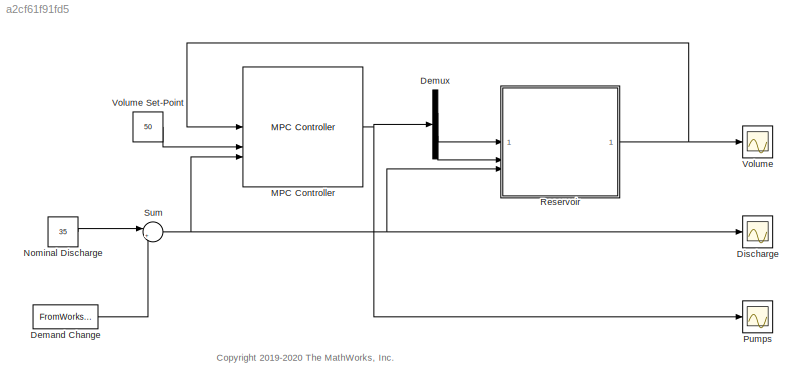
MODEL slx_a2cf61f91fd5
KIND model
CONFIG AbsTol = auto
CONFIG EnableMultiTasking = off
CONFIG FixedStep = auto
CONFIG MaxStep = auto
CONFIG MinStep = auto
CONFIG RelTol = 1e-3
CONFIG SampleTimeConstraint = Unconstrained
CONFIG SolverName = VariableStepAuto
CONFIG StartTime = 0.0
CONFIG StopTime = 100.0
BLOCK [FromWorkspace] Demand Change
  VariableName = [0 0; 5 0; 20 40; 60 40; 80 0; 100 0]
BLOCK [Demux] Demux
  Outputs = 2
BLOCK [Scope] Discharge
  Floating = off
  NumInputPorts = 1
  ScopeSpecificationString = Simulink.scopes.TimeScopeBlockCfg('CurrentConfiguration', extmgr.ConfigurationSet(extmgr.Configuration('Core','General UI',true),extmgr.Configuration('Core','Source UI',true),extmgr.Configuration('Sources','WiredSimulink',true,'DataLoggingVariableName','ScopeData2'),extmgr.Configuration('Visuals','Time Domain',true,'SerializedDisplays',{struct('MinYLimReal','30.00000','MaxYLimReal','80.00000','YLa...<+1396ch>
BLOCK [Reference] MPC Controller  REF=mpclib/MPC Controller  (lib defined in mdl_ae329e0e0455)
  SCDEnableBlockLinearizationSpecification = on
  SourceBlock = mpclib/MPC Controller
  SourceType = MPC
BLOCK [Constant] Nominal Discharge
  Value = 35
BLOCK [Scope] Pumps
  Floating = off
  NumInputPorts = 1
  ScopeSpecificationString = Simulink.scopes.TimeScopeBlockCfg('CurrentConfiguration', extmgr.ConfigurationSet(extmgr.Configuration('Core','General UI',true),extmgr.Configuration('Core','Source UI',true),extmgr.Configuration('Sources','WiredSimulink',true,'DataLoggingVariableName','ScopeData1'),extmgr.Configuration('Visuals','Time Domain',true,'SerializedDisplays',{struct('MinYLimReal','-12.5','MaxYLimReal','112.5','YLabelRea...<+1429ch>
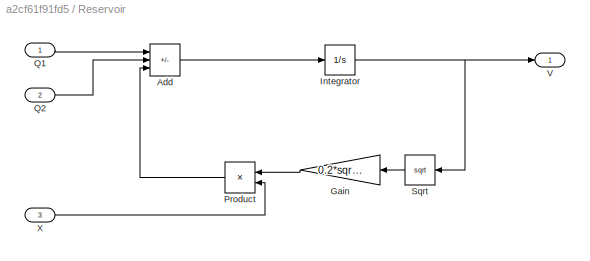
BLOCK [SubSystem] Reservoir
BLOCK [Sum] Reservoir/Add
  IconShape = rectangular
  Inputs = ++-
BLOCK [Gain] Reservoir/Gain
  Gain = 0.2*sqrt(2)
BLOCK [Integrator] Reservoir/Integrator
  InitialCondition = 50
  LimitOutput = on
  LowerSaturationLimit = 0
  UpperSaturationLimit = 100
BLOCK [Product] Reservoir/Product
BLOCK [Inport] Reservoir/Q1
BLOCK [Inport] Reservoir/Q2
  Port = 2
BLOCK [Sqrt] Reservoir/Sqrt
BLOCK [Outport] Reservoir/V
BLOCK [Inport] Reservoir/X
  Port = 3
BLOCK [Sum] Sum
  Inputs = |++
BLOCK [Scope] Volume
  Floating = off
  NumInputPorts = 1
  ScopeSpecificationString = Simulink.scopes.TimeScopeBlockCfg('CurrentConfiguration', extmgr.ConfigurationSet(extmgr.Configuration('Core','General UI',true),extmgr.Configuration('Core','Source UI',true),extmgr.Configuration('Sources','WiredSimulink',true),extmgr.Configuration('Visuals','Time Domain',true,'SerializedDisplays',{struct('MinYLimReal','22.70158','MaxYLimReal','79.03382','YLabelReal','','MinYLimMag','22.70158','Ma...<+1358ch>
BLOCK [Constant] Volume Set-Point
  Value = 50
ANNOTATION (root): <copyright redacted>
LINE Demand Change:1 -> Sum:2
LINE Demux:1 -> Reservoir:1
LINE Demux:2 -> Reservoir:2
NET MPC Controller:1 -> Demux:1, Pumps:1
LINE Nominal Discharge:1 -> Sum:1
LINE Reservoir/Add:1 -> Reservoir/Integrator:1
LINE Reservoir/Gain:1 -> Reservoir/Product:1
NET Reservoir/Integrator:1 -> Reservoir/Sqrt:1, Reservoir/V:1
LINE Reservoir/Product:1 -> Reservoir/Add:3
LINE Reservoir/Q1:1 -> Reservoir/Add:1
LINE Reservoir/Q2:1 -> Reservoir/Add:2
LINE Reservoir/Sqrt:1 -> Reservoir/Gain:1
LINE Reservoir/X:1 -> Reservoir/Product:2
NET Reservoir:1 -> MPC Controller:1, Volume:1
NET Sum:1 -> Discharge:1, MPC Controller:3, Reservoir:3
LINE Volume Set-Point:1 -> MPC Controller:2
note: NET lines group one-source signal fan-out (src -> all destinations, sorted); 1:1 wires keep LINE
